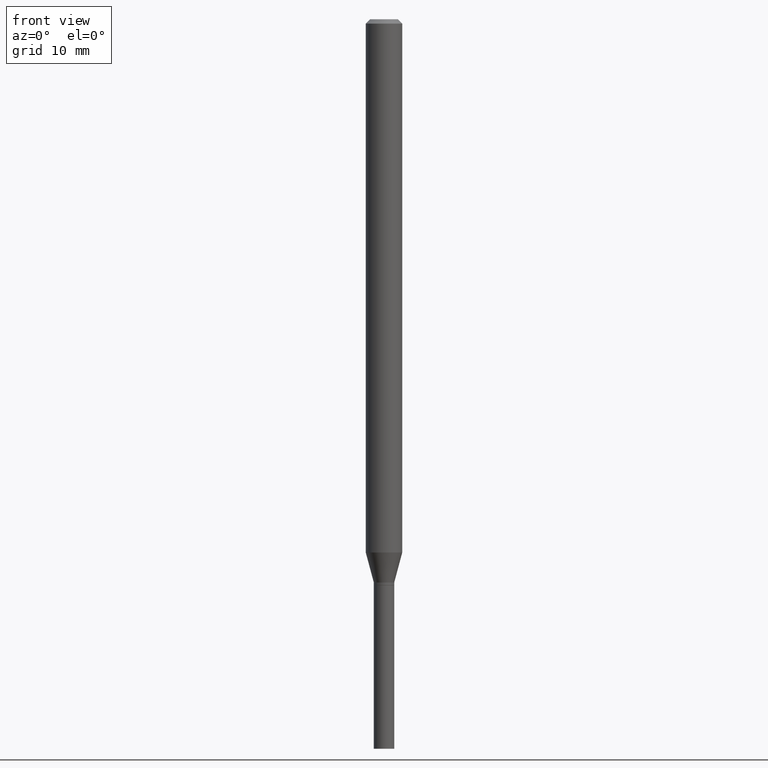
[diagram: clean part render]
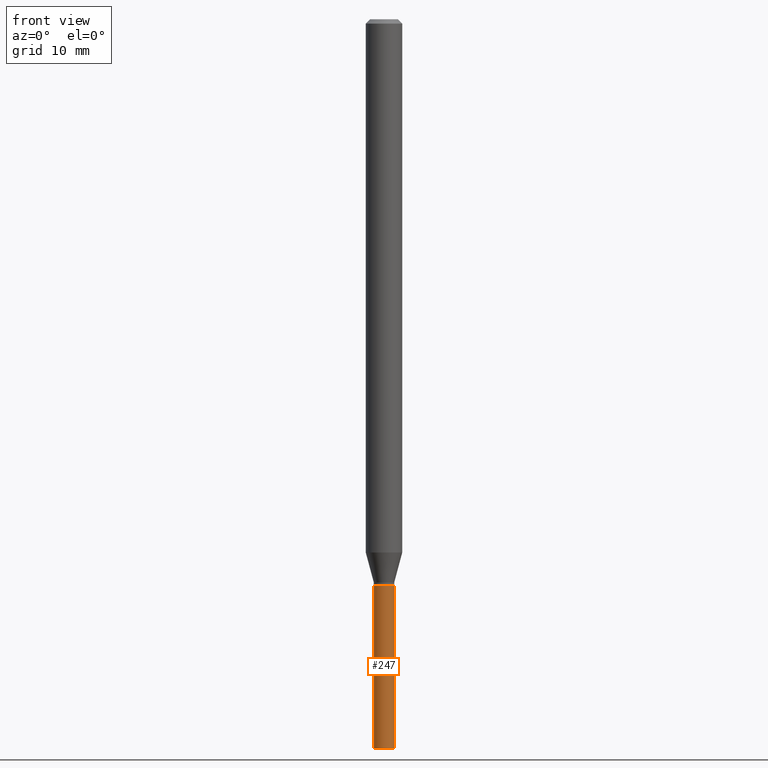
[diagram: same view with one face highlighted and labeled with its STEP entity id]
A machine part, front view. The second image highlights one B-rep face of the part: STEP entity #247.
In plain terms, the highlighted cylindrical surface (edge-blend (fillet) strip) has radius 0.889 mm, axis along (-0, 0, 1).
Its self-contained STEP definition (entity closure, byte-faithful):
#2 = ORIENTED_EDGE ( 'NONE', *, *, #77, .F. ) ;
#9 = VERTEX_POINT ( 'NONE', #166 ) ;
#11 = VECTOR ( 'NONE', #318, 39.37007874015748143 ) ;
#39 = VERTEX_POINT ( 'NONE', #171 ) ;
#40 = FACE_OUTER_BOUND ( 'NONE', #44, .T. ) ;
#44 = EDGE_LOOP ( 'NONE', ( #2, #287, #80, #397 ) ) ;
#48 = AXIS2_PLACEMENT_3D ( 'NONE', #449, #308, #127 ) ;
#71 = DIRECTION ( 'NONE',  ( -2.445468806185136597E-29, 3.491481338843145583E-15, 1.000000000000000000 ) ) ;
#77 = EDGE_CURVE ( 'NONE', #9, #399, #305, .T. ) ;
#80 = ORIENTED_EDGE ( 'NONE', *, *, #144, .T. ) ;
#83 = VERTEX_POINT ( 'NONE', #279 ) ;
#92 = CIRCLE ( 'NONE', #326, 0.03500000000000000333 ) ;
#99 = CARTESIAN_POINT ( 'NONE',  ( 6.113672015462842613E-29, -8.728703347107864943E-15, -2.500000000000000000 ) ) ;
#100 = VECTOR ( 'NONE', #451, 39.37007874015748143 ) ;
#101 = AXIS2_PLACEMENT_3D ( 'NONE', #361, #185, #392 ) ;
#127 = DIRECTION ( 'NONE',  ( 1.000000000000000000, -6.982962677686276966E-15, 0.000000000000000000 ) ) ;
#142 = DIRECTION ( 'NONE',  ( 1.000000000000000000, -6.982962677686276966E-15, 0.000000000000000000 ) ) ;
#144 = EDGE_CURVE ( 'NONE', #39, #83, #358, .T. ) ;
#158 = EDGE_CURVE ( 'NONE', #9, #39, #92, .T. ) ;
#166 = CARTESIAN_POINT ( 'NONE',  ( -0.03500000000000000333, -7.502398614715749004E-15, -2.500000000000000000 ) ) ;
#171 = CARTESIAN_POINT ( 'NONE',  ( 0.03500000000000000333, -8.973107040826884909E-15, -2.500000000000000000 ) ) ;
#185 = DIRECTION ( 'NONE',  ( -2.445468806185136597E-29, 3.491481338843145583E-15, 1.000000000000000000 ) ) ;
#212 = CIRCLE ( 'NONE', #48, 0.03500000000000000333 ) ;
#247 = ADVANCED_FACE ( 'NONE', ( #40 ), #288, .T. ) ;
#279 = CARTESIAN_POINT ( 'NONE',  ( 0.03500000000000000333, -7.017877491074722814E-15, -1.940000000000000169 ) ) ;
#287 = ORIENTED_EDGE ( 'NONE', *, *, #158, .T. ) ;
#288 = CYLINDRICAL_SURFACE ( 'NONE', #101, 0.03500000000000000333 ) ;
#305 = LINE ( 'NONE', #315, #100 ) ;
#308 = DIRECTION ( 'NONE',  ( -2.445468806185136597E-29, 3.491481338843145583E-15, 1.000000000000000000 ) ) ;
#315 = CARTESIAN_POINT ( 'NONE',  ( -0.03500000000000000333, 2.486899575160350887E-16, -1.721627281589217108E-30 ) ) ;
#318 = DIRECTION ( 'NONE',  ( -2.445468806185136877E-29, 3.491481338843145188E-15, 1.000000000000000000 ) ) ;
#326 = AXIS2_PLACEMENT_3D ( 'NONE', #99, #71, #142 ) ;
#332 = CARTESIAN_POINT ( 'NONE',  ( -0.03500000000000000333, -7.502398614715749004E-15, -1.940000000000000169 ) ) ;
#358 = LINE ( 'NONE', #466, #11 ) ;
#361 = CARTESIAN_POINT ( 'NONE',  ( 0.000000000000000000, 0.000000000000000000, 0.000000000000000000 ) ) ;
#392 = DIRECTION ( 'NONE',  ( 1.000000000000000000, -6.982962677686265922E-15, 4.876176775795936353E-29 ) ) ;
#397 = ORIENTED_EDGE ( 'NONE', *, *, #465, .F. ) ;
#399 = VERTEX_POINT ( 'NONE', #332 ) ;
#449 = CARTESIAN_POINT ( 'NONE',  ( 4.744209483999165043E-29, -6.773473797355702848E-15, -1.940000000000000169 ) ) ;
#451 = DIRECTION ( 'NONE',  ( -2.445468806185136877E-29, 3.491481338843145188E-15, 1.000000000000000000 ) ) ;
#465 = EDGE_CURVE ( 'NONE', #399, #83, #212, .T. ) ;
#466 = CARTESIAN_POINT ( 'NONE',  ( 0.03500000000000000333, -2.444036937190193250E-16, 1.706661871528577808E-30 ) ) ;